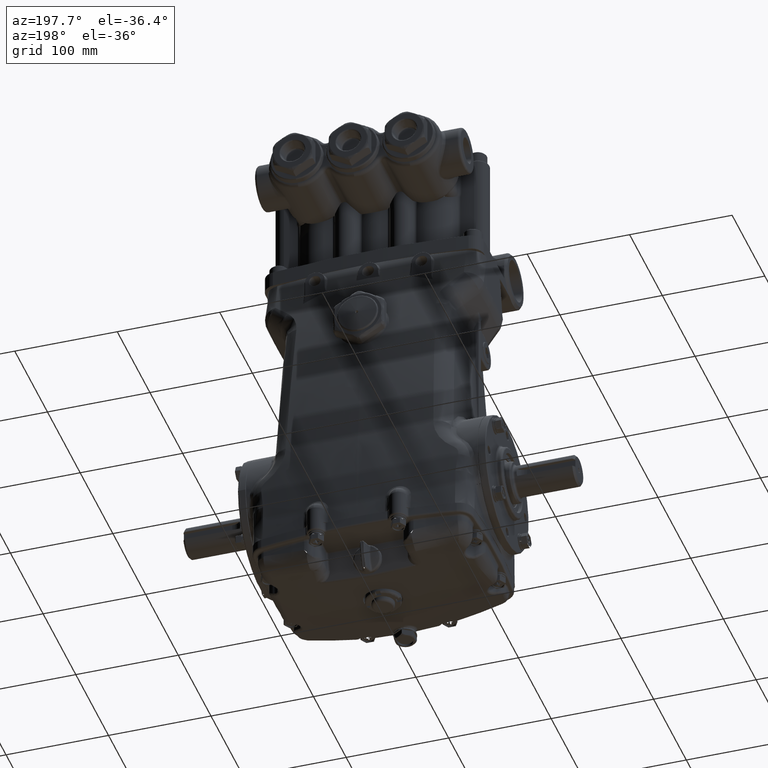
[diagram: clean part render]
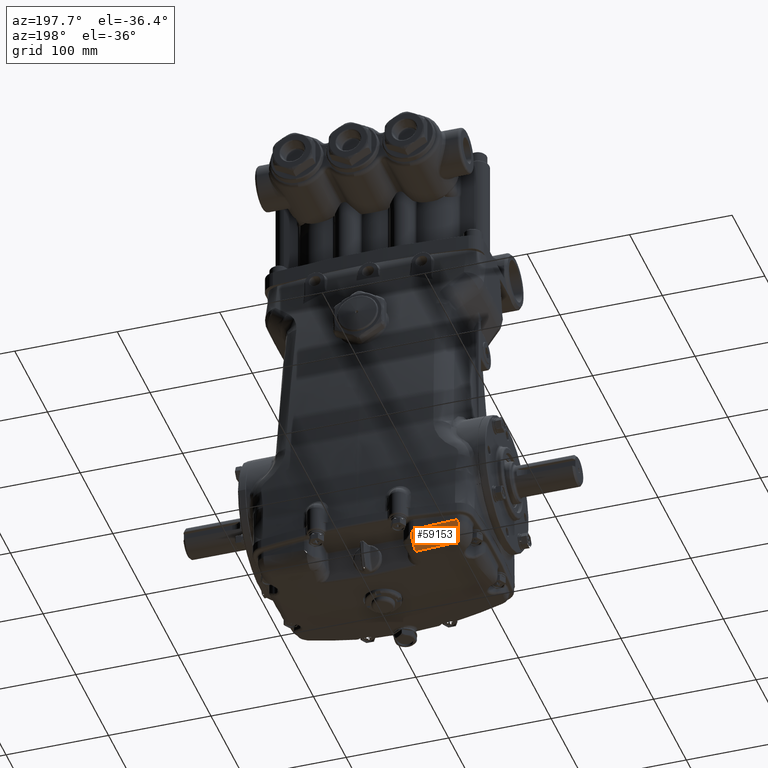
[diagram: same view with one face highlighted and labeled with its STEP entity id]
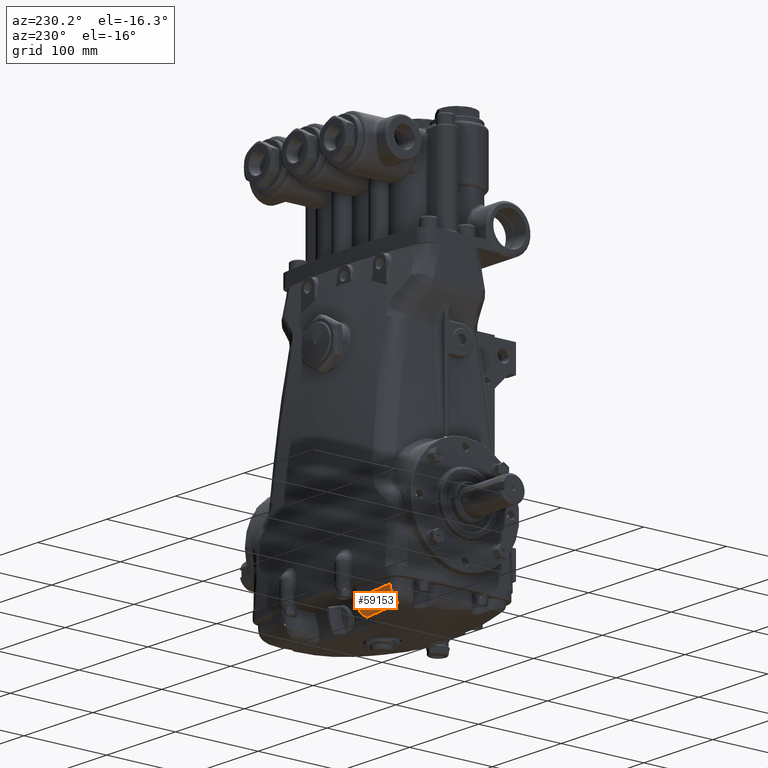
[diagram: same view with one face highlighted and labeled with its STEP entity id]
A machine part, auxiliary view. The second image highlights one B-rep face of the part: STEP entity #59153.
A second angle (auxiliary view) of the same face is appended — the face is thin or edge-on in the first view.
In plain terms, the highlighted face is a freeform B-spline surface patch.
Its self-contained STEP definition (entity closure, byte-faithful):
#128 = CARTESIAN_POINT ( 'NONE',  ( -3.737516744060482843, 2.702632648702251839, -3.481764989952399691 ) ) ;
#224 = CARTESIAN_POINT ( 'NONE',  ( -3.724865599945832439, 2.733452735544332324, -3.321593225613783229 ) ) ;
#563 = VERTEX_POINT ( 'NONE', #20328 ) ;
#769 = CARTESIAN_POINT ( 'NONE',  ( -2.790284723586395899, 2.864837255250538117, -3.447150550924852563 ) ) ;
#794 = CARTESIAN_POINT ( 'NONE',  ( -2.015329584648916761, 2.548676292650088548, -4.093019881588793041 ) ) ;
#1246 = CARTESIAN_POINT ( 'NONE',  ( -3.462745236169809449, 2.225321082699197373, -3.931377360071591553 ) ) ;
#1267 = CARTESIAN_POINT ( 'NONE',  ( -2.018853732995649519, 2.782973585275628547, -3.942217134396374334 ) ) ;
#1476 = CARTESIAN_POINT ( 'NONE',  ( -3.064611472474148446, 2.281165435530092989, -3.994878408164534100 ) ) ;
#1757 = CARTESIAN_POINT ( 'NONE',  ( -2.011737187859601317, 2.457569234603929065, -4.116796238328130464 ) ) ;
#1786 = CARTESIAN_POINT ( 'NONE',  ( -2.085162030633267882, 2.938512400069219321, -3.551388693606166935 ) ) ;
#2773 = VERTEX_POINT ( 'NONE', #7423 ) ;
#5781 = B_SPLINE_CURVE_WITH_KNOTS ( 'NONE', 3,
 ( #73370, #81206, #89051, #128, #43835, #28184, #80736, #95448, #36518, #30110, #65993, #58130, #22739, #88117, #66474, #28677, #58616, #52681, #96396, #29141, #91461, #69826, #47225, #84576, #75773, #15853, #83614, #45783 ),
 .UNSPECIFIED., .F., .F.,
 ( 4, 2, 2, 2, 2, 2, 2, 2, 2, 2, 2, 2, 2, 4 ),
 ( 0.000000000000000000, 0.002643955535082602275, 0.003965933302623902978, 0.005287911070165204550, 0.007931866605247786875, 0.01057582214033037094, 0.01321977767541295500, 0.01454175544295424095, 0.01586373321049552865, 0.01850768874557813526, 0.01982966651311942816, 0.02049065539689008675, 0.02082114983877541431, 0.02115164428066074187 ),
 .UNSPECIFIED. ) ;
#5964 = VERTEX_POINT ( 'NONE', #84369 ) ;
#6714 = CARTESIAN_POINT ( 'NONE',  ( -2.012603636100264382, 2.912445777731503593, -3.729967771333119853 ) ) ;
#7161 = CARTESIAN_POINT ( 'NONE',  ( -2.509033863457554858, 2.346524754649474076, -4.068900811616632751 ) ) ;
#7313 = EDGE_CURVE ( 'NONE', #64157, #2773, #44515, .T. ) ;
#7423 = CARTESIAN_POINT ( 'NONE',  ( -2.008661041545683812, 2.395021426171620060, -4.123632080681848500 ) ) ;
#7664 = CARTESIAN_POINT ( 'NONE',  ( -2.018867968541108393, 2.713026682317381422, -4.004017950941300974 ) ) ;
#7698 = CARTESIAN_POINT ( 'NONE',  ( -2.039932596465843684, 2.936175459108182118, -3.622736399941196783 ) ) ;
#8147 = CARTESIAN_POINT ( 'NONE',  ( -2.637804177693566565, 2.882729703758145856, -4.019655602847468145 ) ) ;
#9612 = CARTESIAN_POINT ( 'NONE',  ( -2.017060377287948292, 2.606279967895290817, -4.069531671866011280 ) ) ;
#11236 = EDGE_CURVE ( 'NONE', #563, #64157, #67609, .T. ) ;
#15044 = CARTESIAN_POINT ( 'NONE',  ( -2.185994373006701519, 2.929834752032648648, -4.071536233670698834 ) ) ;
#15517 = CARTESIAN_POINT ( 'NONE',  ( -2.035375823822523245, 2.942962644062813382, -4.085957985961116812 ) ) ;
#15574 = CARTESIAN_POINT ( 'NONE',  ( -2.024835011084634484, 2.933691365335265644, -3.646368231318502406 ) ) ;
#15853 = CARTESIAN_POINT ( 'NONE',  ( -3.589926427235904605, 2.212589166028257726, -3.906533079685190923 ) ) ;
#16025 = CARTESIAN_POINT ( 'NONE',  ( -2.287777797471726160, 2.369716666513475456, -4.095105627287397354 ) ) ;
#16985 = CARTESIAN_POINT ( 'NONE',  ( -2.008661041545683812, 2.395021426171620060, -4.123632080681848500 ) ) ;
#17012 = ORIENTED_EDGE ( 'NONE', *, *, #11236, .T. ) ;
#20328 = CARTESIAN_POINT ( 'NONE',  ( -2.100116224565677037, 2.937166305850892112, -3.527494820546134058 ) ) ;
#21918 = CARTESIAN_POINT ( 'NONE',  ( -3.732585751360902648, 2.732207866928794804, -3.298738948527224490 ) ) ;
#22421 = CARTESIAN_POINT ( 'NONE',  ( -2.140259142413035942, 2.383759715077253816, -4.110944882373921416 ) ) ;
#22739 = CARTESIAN_POINT ( 'NONE',  ( -3.696984601996585518, 2.501581325252296484, -3.777537083823933717 ) ) ;
#22921 = CARTESIAN_POINT ( 'NONE',  ( -2.017730081022738542, 2.634156473817941269, -4.055532896783350161 ) ) ;
#22952 = CARTESIAN_POINT ( 'NONE',  ( -2.100116224565677037, 2.937166305850892112, -3.527494820546134058 ) ) ;
#23867 = CARTESIAN_POINT ( 'NONE',  ( -3.829921441044551678, 2.716497616843376761, -3.835233842738994703 ) ) ;
#24083 = CARTESIAN_POINT ( 'NONE',  ( -3.586567978287549696, 2.204579372434504414, -3.907619816998144646 ) ) ;
#27373 = CARTESIAN_POINT ( 'NONE',  ( -2.780073569570010950, 2.866342727132090484, -3.448835271658081236 ) ) ;
#28184 = CARTESIAN_POINT ( 'NONE',  ( -3.737493921409266395, 2.684245740957750925, -3.530746230251307960 ) ) ;
#28677 = CARTESIAN_POINT ( 'NONE',  ( -3.669457429559822792, 2.418731255584618989, -3.834352776594702750 ) ) ;
#29141 = CARTESIAN_POINT ( 'NONE',  ( -3.618855026250156648, 2.283529087898899856, -3.891680391385988091 ) ) ;
#29289 = CARTESIAN_POINT ( 'NONE',  ( -1.982958768861135646, 2.947415766882873100, -3.538847466915269191 ) ) ;
#30110 = CARTESIAN_POINT ( 'NONE',  ( -3.723373018842453863, 2.596959985914052194, -3.679950572016406962 ) ) ;
#30735 = CARTESIAN_POINT ( 'NONE',  ( -1.992725941059258821, 2.396391257041976530, -4.125175385093277747 ) ) ;
#31034 = ORIENTED_EDGE ( 'NONE', *, *, #78921, .F. ) ;
#31205 = CARTESIAN_POINT ( 'NONE',  ( -3.238673975216356915, 2.808652018755701807, -3.937786047380594567 ) ) ;
#31515 = CARTESIAN_POINT ( 'NONE',  ( -3.727262698504051563, 2.731923116403688123, -3.342525876208251479 ) ) ;
#31663 = EDGE_LOOP ( 'NONE', ( #90579, #17012, #83273, #31034, #68115, #77897 ) ) ;
#31727 = CARTESIAN_POINT ( 'NONE',  ( -2.018943144638575937, 2.725293064628531603, -3.994403578047414971 ) ) ;
#34490 = EDGE_CURVE ( 'NONE', #62969, #5964, #42824, .T. ) ;
#36518 = CARTESIAN_POINT ( 'NONE',  ( -3.731732992224912948, 2.636687970616530485, -3.623548096147506836 ) ) ;
#36686 = CARTESIAN_POINT ( 'NONE',  ( -2.013243039263550305, 2.906994677857072773, -3.744805614269823391 ) ) ;
#37143 = CARTESIAN_POINT ( 'NONE',  ( -3.445759575708208899, 2.778502406631480071, -3.350787088489617371 ) ) ;
#37612 = CARTESIAN_POINT ( 'NONE',  ( -2.804034028651495536, 2.312758321544812645, -4.030682656907055517 ) ) ;
#38105 = CARTESIAN_POINT ( 'NONE',  ( -2.336607915801260482, 2.915239261671282556, -4.055483207734749129 ) ) ;
#38130 = CARTESIAN_POINT ( 'NONE',  ( -2.018056244571685642, 2.823438992788168456, -3.894037730487135196 ) ) ;
#38323 = CARTESIAN_POINT ( 'NONE',  ( -2.008661041545683812, 2.395021426171620060, -4.123632080681848500 ) ) ;
#39070 = CARTESIAN_POINT ( 'NONE',  ( -2.018296285213465158, 2.813629995219219193, -3.906452056939862860 ) ) ;
#40122 = CARTESIAN_POINT ( 'NONE',  ( -3.185883879457194201, 2.815442558883647806, -3.392085596420166826 ) ) ;
#42824 = B_SPLINE_CURVE_WITH_KNOTS ( 'NONE', 3,
 ( #91438, #224, #31515, #54091 ),
 .UNSPECIFIED., .F., .F.,
 ( 4, 4 ),
 ( 4.163336342344337027E-17, 0.001609717878817816571 ),
 .UNSPECIFIED. ) ;
#43835 = CARTESIAN_POINT ( 'NONE',  ( -3.737735883841987850, 2.696964755590801843, -3.498207934333523728 ) ) ;
#44515 = B_SPLINE_CURVE_WITH_KNOTS ( 'NONE', 3,
 ( #51403, #81380, #74038, #6714, #36686, #74985, #52859, #84278, #52379, #38130, #39070, #1267, #69038, #31727, #7664, #82820, #90189, #22921, #9612, #794, #45959, #1757, #53336, #16985 ),
 .UNSPECIFIED., .F., .F.,
 ( 4, 2, 2, 2, 2, 2, 2, 2, 2, 2, 2, 4 ),
 ( 0.003399736178404548503, 0.004585084322060548057, 0.005770432465716546742, 0.008141128753028505083, 0.009326476896684497697, 0.01051182504034048684, 0.01288252132765243738, 0.01406786947130838142, 0.01525321761496432546, 0.01762391390227621701, 0.01999461018958810857, 0.02236530647689999665 ),
 .UNSPECIFIED. ) ;
#44964 = CARTESIAN_POINT ( 'NONE',  ( -2.582782227697327571, 2.338439536920558837, -4.059758141847576773 ) ) ;
#45783 = CARTESIAN_POINT ( 'NONE',  ( -3.586567978287549696, 2.204579372434504414, -3.907619816998144646 ) ) ;
#45935 = CARTESIAN_POINT ( 'NONE',  ( -2.276563003563225607, 2.921077483154649546, -3.509666912835651242 ) ) ;
#45959 = CARTESIAN_POINT ( 'NONE',  ( -2.014268512229947738, 2.518949167658389499, -4.102509424757516676 ) ) ;
#47225 = CARTESIAN_POINT ( 'NONE',  ( -3.599828351550629524, 2.236480282554629273, -3.902575583985804730 ) ) ;
#50325 = CARTESIAN_POINT ( 'NONE',  ( -2.009752825193870773, 2.929869045140839567, -3.669914478049412399 ) ) ;
#50979 =( BOUNDED_SURFACE ( )  B_SPLINE_SURFACE ( 3, 2, ( 
 ( #30735, #15517, #29289 ),
 ( #22421, #15044, #60218 ),
 ( #16025, #38105, #45935 ),
 ( #7161, #90637, #74480 ),
 ( #44964, #8147, #75925 ),
 ( #67093, #90165, #83769 ),
 ( #37612, #67585, #769 ),
 ( #68542, #31205, #91130 ),
 ( #1246, #60698, #37143 ),
 ( #52837, #23867, #21918 ) ),
 .UNSPECIFIED., .F., .F., .F. ) 
 B_SPLINE_SURFACE_WITH_KNOTS ( ( 4, 2, 2, 2, 4 ),
 ( 3, 3 ),
 ( 0.1114708440453932858, 0.1223851086584093611, 0.1278422409649173919, 0.1332993732714254365, 0.1551279024974576148 ),
 ( 0.000000000000000000, 1.000000000000000000 ),
 .UNSPECIFIED. ) 
 GEOMETRIC_REPRESENTATION_ITEM ( )  RATIONAL_B_SPLINE_SURFACE ( (
 ( 1.000000000000000000, 0.7320112516882890663, 1.000000000000000000),
 ( 1.000000000000000000, 0.7321599816062944743, 1.000000000000000000),
 ( 1.000000000000000000, 0.7323253871330530629, 1.000000000000000000),
 ( 1.000000000000000000, 0.7325986937926109999, 1.000000000000000000),
 ( 1.000000000000000000, 0.7326939959436520322, 1.000000000000000000),
 ( 1.000000000000000000, 0.7328930351546805166, 1.000000000000000000),
 ( 1.000000000000000000, 0.7329968111163125410, 1.000000000000000000),
 ( 1.000000000000000000, 0.7335350421959682121, 1.000000000000000000),
 ( 1.000000000000000000, 0.7340287423903668618, 1.000000000000000000),
 ( 1.000000000000000000, 0.7345831506553359702, 1.000000000000000000) ) ) 
 REPRESENTATION_ITEM ( '' )  SURFACE ( )  );
#51393 = B_SPLINE_CURVE_WITH_KNOTS ( 'NONE', 3,
 ( #64702, #94645, #85812, #63209, #27373, #40122, #70570, #70093 ),
 .UNSPECIFIED., .F., .F.,
 ( 4, 2, 2, 4 ),
 ( 0.01343177276532662827, 0.02391691092420717563, 0.03440204908308772819, 0.05537232540084881943 ),
 .UNSPECIFIED. ) ;
#51403 = CARTESIAN_POINT ( 'NONE',  ( -2.009752825193870773, 2.929869045140839567, -3.669914478049412399 ) ) ;
#51931 = CARTESIAN_POINT ( 'NONE',  ( -2.009752825193870773, 2.929869045140839567, -3.669914478049412399 ) ) ;
#52355 = FACE_OUTER_BOUND ( 'NONE', #31663, .T. ) ;
#52379 = CARTESIAN_POINT ( 'NONE',  ( -2.017477510341515234, 2.841868910324116815, -3.868704240617084622 ) ) ;
#52681 = CARTESIAN_POINT ( 'NONE',  ( -3.648331409514291579, 2.359862528274131233, -3.865032165953713239 ) ) ;
#52837 = CARTESIAN_POINT ( 'NONE',  ( -3.750989001785518973, 2.178435422536481703, -3.877737549042161280 ) ) ;
#52859 = CARTESIAN_POINT ( 'NONE',  ( -2.015973047405552609, 2.874933234717232278, -3.815927753831024116 ) ) ;
#53059 = CARTESIAN_POINT ( 'NONE',  ( -3.326332494310697552, 2.245008663854715980, -3.953787052236676924 ) ) ;
#53336 = CARTESIAN_POINT ( 'NONE',  ( -2.010289047219268710, 2.426460876752787321, -4.121461616823808072 ) ) ;
#54091 = CARTESIAN_POINT ( 'NONE',  ( -3.729573284674863487, 2.729261672288969987, -3.363385691077860784 ) ) ;
#54614 = EDGE_CURVE ( 'NONE', #5964, #65396, #5781, .T. ) ;
#55674 = B_SPLINE_CURVE_WITH_KNOTS ( 'NONE', 3,
 ( #24083, #53059, #1476, #60908, #67319, #38323 ),
 .UNSPECIFIED., .F., .F.,
 ( 4, 2, 4 ),
 ( 0.01283934888689720714, 0.03321189596127591820, 0.05358444303565463446 ),
 .UNSPECIFIED. ) ;
#58130 = CARTESIAN_POINT ( 'NONE',  ( -3.704662605811432474, 2.526983067962228713, -3.755456890806466053 ) ) ;
#58616 = CARTESIAN_POINT ( 'NONE',  ( -3.664294765803590259, 2.404083795140497415, -3.842572832091617929 ) ) ;
#59153 = ADVANCED_FACE ( 'NONE', ( #52355 ), #50979, .T. ) ;
#60218 = CARTESIAN_POINT ( 'NONE',  ( -2.129768222141545042, 2.934943480389763160, -3.525037716008200039 ) ) ;
#60698 = CARTESIAN_POINT ( 'NONE',  ( -3.535679407138015318, 2.765228717207981024, -3.889607669103543497 ) ) ;
#60908 = CARTESIAN_POINT ( 'NONE',  ( -2.538175973886774628, 2.344752768743589399, -4.066935304130395501 ) ) ;
#62969 = VERTEX_POINT ( 'NONE', #79303 ) ;
#63209 = CARTESIAN_POINT ( 'NONE',  ( -2.644393222954703582, 2.882160335301807041, -3.466436650820801102 ) ) ;
#64157 = VERTEX_POINT ( 'NONE', #50325 ) ;
#64702 = CARTESIAN_POINT ( 'NONE',  ( -2.100116224565677037, 2.937166305850892112, -3.527494820546134058 ) ) ;
#65396 = VERTEX_POINT ( 'NONE', #76349 ) ;
#65993 = CARTESIAN_POINT ( 'NONE',  ( -3.717849334939988815, 2.574610976687888186, -3.706784451973621053 ) ) ;
#66474 = CARTESIAN_POINT ( 'NONE',  ( -3.679257148320109305, 2.447273493536890498, -3.816726324249245739 ) ) ;
#67093 = CARTESIAN_POINT ( 'NONE',  ( -2.730271603349664566, 2.321557966965366759, -4.040650940338934127 ) ) ;
#67319 = CARTESIAN_POINT ( 'NONE',  ( -2.273859509442015536, 2.372132690393284893, -4.097843512510861430 ) ) ;
#67585 = CARTESIAN_POINT ( 'NONE',  ( -2.863650486587857369, 2.856041864047840662, -3.990190432896560946 ) ) ;
#67609 = B_SPLINE_CURVE_WITH_KNOTS ( 'NONE', 3,
 ( #22952, #1786, #97085, #7698, #15574, #51931 ),
 .UNSPECIFIED., .F., .F.,
 ( 4, 2, 4 ),
 ( -2.456809756430743181E-05, 0.002125780299127694260, 0.004276128695819695832 ),
 .UNSPECIFIED. ) ;
#68115 = ORIENTED_EDGE ( 'NONE', *, *, #54614, .F. ) ;
#68542 = CARTESIAN_POINT ( 'NONE',  ( -3.171628289734886419, 2.267132050973883040, -3.978945177614238382 ) ) ;
#69038 = CARTESIAN_POINT ( 'NONE',  ( -2.019013236791796118, 2.760872490053809525, -3.964186013069908920 ) ) ;
#69826 = CARTESIAN_POINT ( 'NONE',  ( -3.603065768266152435, 2.244383940149033752, -3.901012871617798972 ) ) ;
#70093 = CARTESIAN_POINT ( 'NONE',  ( -3.722381251057811369, 2.733852591662715881, -3.300587974550801995 ) ) ;
#70570 = CARTESIAN_POINT ( 'NONE',  ( -3.454893615895264780, 2.776904744292068461, -3.348985039961423826 ) ) ;
#73370 = CARTESIAN_POINT ( 'NONE',  ( -3.729573284674863487, 2.729261672288969987, -3.363385691077860784 ) ) ;
#74038 = CARTESIAN_POINT ( 'NONE',  ( -2.011240824495045487, 2.922082032938503993, -3.700099773365907563 ) ) ;
#74480 = CARTESIAN_POINT ( 'NONE',  ( -2.496733029537758775, 2.898177969314998492, -3.484237445746360518 ) ) ;
#74985 = CARTESIAN_POINT ( 'NONE',  ( -2.015000932762530006, 2.889062261357445482, -3.788203877533644626 ) ) ;
#75773 = CARTESIAN_POINT ( 'NONE',  ( -3.593252971707948884, 2.220577833458213579, -3.905314734399023102 ) ) ;
#75925 = CARTESIAN_POINT ( 'NONE',  ( -2.570119342483626390, 2.890194688059251504, -3.475365339822311217 ) ) ;
#76349 = CARTESIAN_POINT ( 'NONE',  ( -3.586567978287549696, 2.204579372434504414, -3.907619816998144646 ) ) ;
#77897 = ORIENTED_EDGE ( 'NONE', *, *, #34490, .F. ) ;
#78921 = EDGE_CURVE ( 'NONE', #65396, #2773, #55674, .T. ) ;
#79303 = CARTESIAN_POINT ( 'NONE',  ( -3.722381251057811369, 2.733852591662715881, -3.300587974550801995 ) ) ;
#80736 = CARTESIAN_POINT ( 'NONE',  ( -3.737027986068453878, 2.677174382483581194, -3.546866918467077578 ) ) ;
#81206 = CARTESIAN_POINT ( 'NONE',  ( -3.733408558170834279, 2.724844020053365679, -3.398010279823760360 ) ) ;
#81380 = CARTESIAN_POINT ( 'NONE',  ( -2.010517407325794981, 2.926278849474834853, -3.685059165740202758 ) ) ;
#82820 = CARTESIAN_POINT ( 'NONE',  ( -2.018612432819366198, 2.687668807038384511, -4.022316918696412280 ) ) ;
#83273 = ORIENTED_EDGE ( 'NONE', *, *, #7313, .T. ) ;
#83614 = CARTESIAN_POINT ( 'NONE',  ( -3.588299255315751779, 2.208521240094638571, -3.907093277821767519 ) ) ;
#83769 = CARTESIAN_POINT ( 'NONE',  ( -2.716884535208853979, 2.873525956865489839, -3.456823712650617164 ) ) ;
#84278 = CARTESIAN_POINT ( 'NONE',  ( -2.017138198764296231, 2.850537187783737103, -3.855733654541176225 ) ) ;
#84369 = CARTESIAN_POINT ( 'NONE',  ( -3.729573284674863487, 2.729261672288969987, -3.363385691077860784 ) ) ;
#84576 = CARTESIAN_POINT ( 'NONE',  ( -3.594905221711530263, 2.224561365729076368, -3.904662142899108623 ) ) ;
#85812 = CARTESIAN_POINT ( 'NONE',  ( -2.372622426020484898, 2.911431465913962846, -3.498962352695616396 ) ) ;
#88117 = CARTESIAN_POINT ( 'NONE',  ( -3.683887514576786426, 2.461143949993963798, -3.807345320843064318 ) ) ;
#89051 = CARTESIAN_POINT ( 'NONE',  ( -3.735852509065812566, 2.717588058725689315, -3.431921423482768407 ) ) ;
#89461 = EDGE_CURVE ( 'NONE', #563, #62969, #51393, .T. ) ;
#90165 = CARTESIAN_POINT ( 'NONE',  ( -2.788359943220108939, 2.865185995968285493, -4.000291903372798608 ) ) ;
#90189 = CARTESIAN_POINT ( 'NONE',  ( -2.018431263788821539, 2.674532211315945762, -4.031028472620512559 ) ) ;
#90579 = ORIENTED_EDGE ( 'NONE', *, *, #89461, .F. ) ;
#90637 = CARTESIAN_POINT ( 'NONE',  ( -2.562518770391811973, 2.891132306650684214, -4.028921193072863893 ) ) ;
#91130 = CARTESIAN_POINT ( 'NONE',  ( -3.156073483810607705, 2.819786229679026146, -3.396945176348955098 ) ) ;
#91438 = CARTESIAN_POINT ( 'NONE',  ( -3.722381251057811369, 2.733852591662715881, -3.300587974550801995 ) ) ;
#91461 = CARTESIAN_POINT ( 'NONE',  ( -3.612645306707855664, 2.267970468953392604, -3.895818129226839677 ) ) ;
#94645 = CARTESIAN_POINT ( 'NONE',  ( -2.236491968731380009, 2.924890512078852201, -3.513892844164971496 ) ) ;
#95448 = CARTESIAN_POINT ( 'NONE',  ( -3.734638026793226651, 2.654280958146486125, -3.593817544552499132 ) ) ;
#96396 = CARTESIAN_POINT ( 'NONE',  ( -3.636958785444220243, 2.329717205871077113, -3.877275763231830208 ) ) ;
#97085 = CARTESIAN_POINT ( 'NONE',  ( -2.070085406335365530, 2.938587842401590322, -3.575263637032549902 ) ) ;